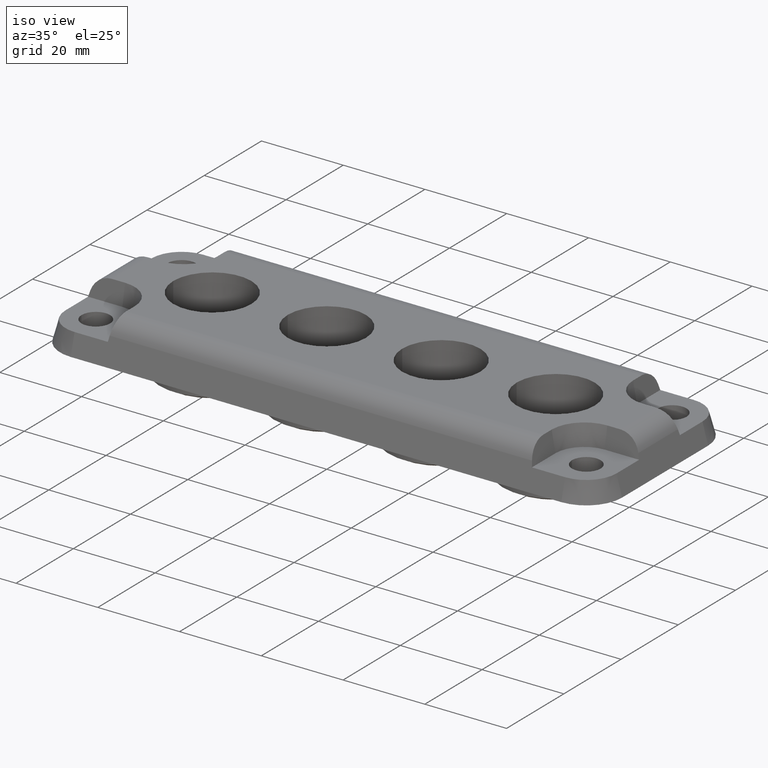
[diagram: clean part render]
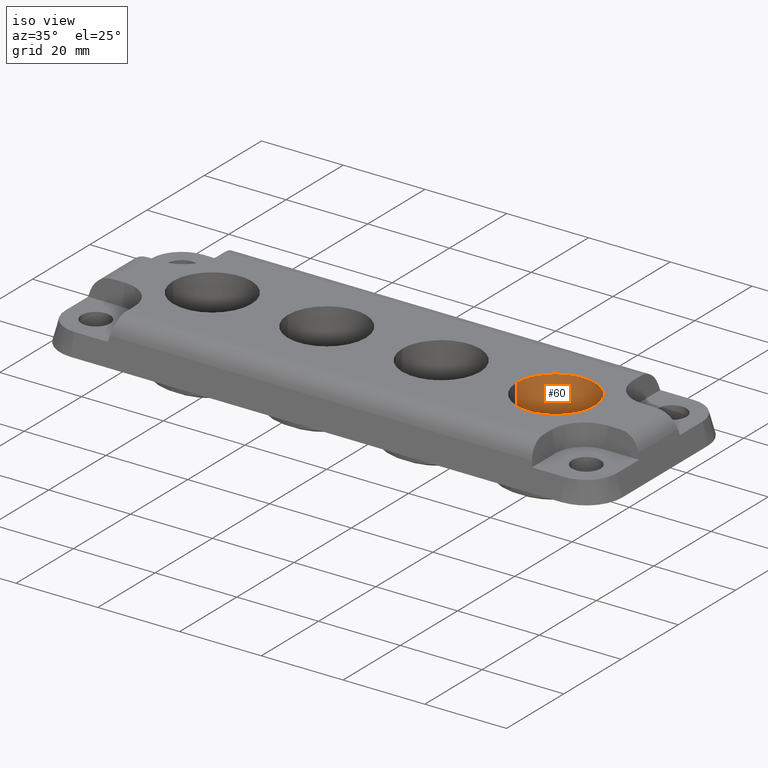
[diagram: same view with one face highlighted and labeled with its STEP entity id]
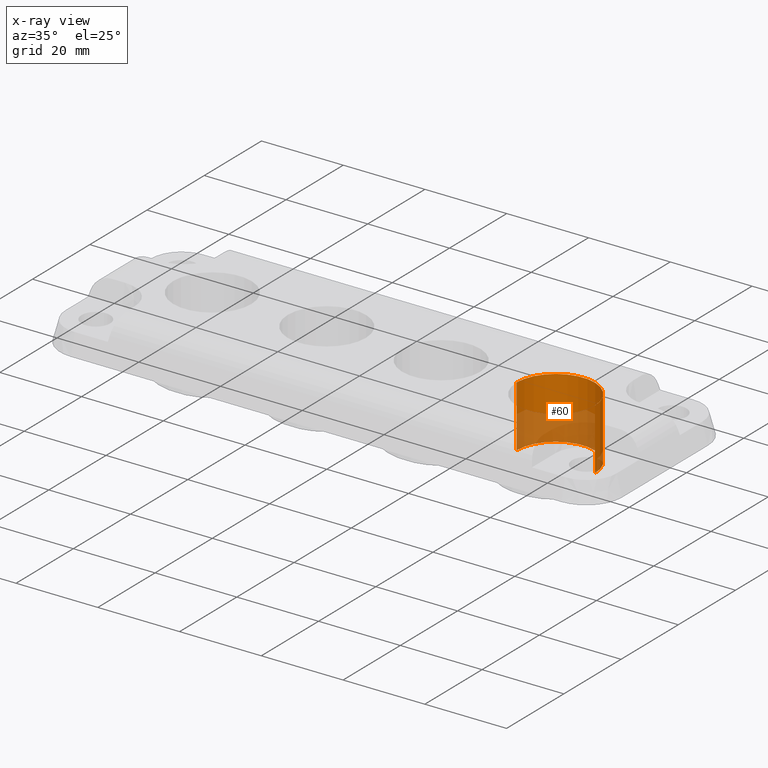
[diagram: x-ray of the same camera — body ghosted, the highlighted face saturated]
A machine part, iso view. The second image highlights one B-rep face of the part: STEP entity #60.
The next image is the same camera in x-ray: the body ghosted, the highlighted face saturated — about 43% of this face is hidden behind the body in this view.
In plain terms, the highlighted cylindrical surface (partial cylindrical patch) has radius 9.55 mm, axis along (-0, -0, 1).
Its self-contained STEP definition (entity closure, byte-faithful):
#60 = ADVANCED_FACE ( 'NONE', ( #3891 ), #111, .F. ) ;
#89 = VERTEX_POINT ( 'NONE', #2135 ) ;
#111 = CYLINDRICAL_SURFACE ( 'NONE', #1789, 9.550000000000002500 ) ;
#252 = DIRECTION ( 'NONE',  ( -0.0000000000000000000, -0.0000000000000000000, 1.000000000000000000 ) ) ;
#343 = VERTEX_POINT ( 'NONE', #3010 ) ;
#358 = CARTESIAN_POINT ( 'NONE',  ( 42.00000000000000000, 0.0000000000000000000, -4.999999999999999100 ) ) ;
#407 = CIRCLE ( 'NONE', #1288, 9.550000000000002500 ) ;
#497 = CARTESIAN_POINT ( 'NONE',  ( 42.00000000000000000, 0.0000000000000000000, -4.999999999999999100 ) ) ;
#565 = ORIENTED_EDGE ( 'NONE', *, *, #2584, .F. ) ;
#845 = DIRECTION ( 'NONE',  ( -0.0000000000000000000, -0.0000000000000000000, 1.000000000000000000 ) ) ;
#936 = DIRECTION ( 'NONE',  ( -0.0000000000000000000, -0.0000000000000000000, 1.000000000000000000 ) ) ;
#1173 = VECTOR ( 'NONE', #936, 1000.000000000000000 ) ;
#1231 = CARTESIAN_POINT ( 'NONE',  ( 32.45000000000000300, 1.169537693185722400E-015, 10.00000000000000000 ) ) ;
#1256 = DIRECTION ( 'NONE',  ( 0.0000000000000000000, 0.0000000000000000000, 1.000000000000000000 ) ) ;
#1259 = DIRECTION ( 'NONE',  ( 1.000000000000000000, 0.0000000000000000000, 0.0000000000000000000 ) ) ;
#1277 = EDGE_CURVE ( 'NONE', #343, #2576, #407, .T. ) ;
#1288 = AXIS2_PLACEMENT_3D ( 'NONE', #3143, #1256, #2815 ) ;
#1405 = ORIENTED_EDGE ( 'NONE', *, *, #2379, .T. ) ;
#1763 = CIRCLE ( 'NONE', #3323, 9.550000000000002500 ) ;
#1789 = AXIS2_PLACEMENT_3D ( 'NONE', #497, #252, #3095 ) ;
#1852 = LINE ( 'NONE', #3652, #2437 ) ;
#2057 = EDGE_LOOP ( 'NONE', ( #565, #4048, #1405, #3657 ) ) ;
#2135 = CARTESIAN_POINT ( 'NONE',  ( 32.45000000000000300, 1.169537693185722400E-015, -4.999999999999999100 ) ) ;
#2181 = CARTESIAN_POINT ( 'NONE',  ( 51.55000000000000400, 0.0000000000000000000, -4.999999999999999100 ) ) ;
#2379 = EDGE_CURVE ( 'NONE', #3615, #343, #1852, .T. ) ;
#2437 = VECTOR ( 'NONE', #845, 1000.000000000000000 ) ;
#2576 = VERTEX_POINT ( 'NONE', #1231 ) ;
#2584 = EDGE_CURVE ( 'NONE', #89, #2576, #3967, .T. ) ;
#2815 = DIRECTION ( 'NONE',  ( 1.000000000000000000, 0.0000000000000000000, 0.0000000000000000000 ) ) ;
#2858 = DIRECTION ( 'NONE',  ( 0.0000000000000000000, 0.0000000000000000000, 1.000000000000000000 ) ) ;
#2962 = EDGE_CURVE ( 'NONE', #3615, #89, #1763, .T. ) ;
#3010 = CARTESIAN_POINT ( 'NONE',  ( 51.55000000000000400, 0.0000000000000000000, 10.00000000000000000 ) ) ;
#3095 = DIRECTION ( 'NONE',  ( 1.000000000000000000, 0.0000000000000000000, 0.0000000000000000000 ) ) ;
#3143 = CARTESIAN_POINT ( 'NONE',  ( 42.00000000000000000, 0.0000000000000000000, 10.00000000000000000 ) ) ;
#3323 = AXIS2_PLACEMENT_3D ( 'NONE', #358, #2858, #1259 ) ;
#3439 = CARTESIAN_POINT ( 'NONE',  ( 32.45000000000000300, 1.169537693185722600E-015, -4.999999999999999100 ) ) ;
#3615 = VERTEX_POINT ( 'NONE', #2181 ) ;
#3652 = CARTESIAN_POINT ( 'NONE',  ( 51.55000000000000400, 0.0000000000000000000, -4.999999999999999100 ) ) ;
#3657 = ORIENTED_EDGE ( 'NONE', *, *, #1277, .T. ) ;
#3891 = FACE_OUTER_BOUND ( 'NONE', #2057, .T. ) ;
#3967 = LINE ( 'NONE', #3439, #1173 ) ;
#4048 = ORIENTED_EDGE ( 'NONE', *, *, #2962, .F. ) ;